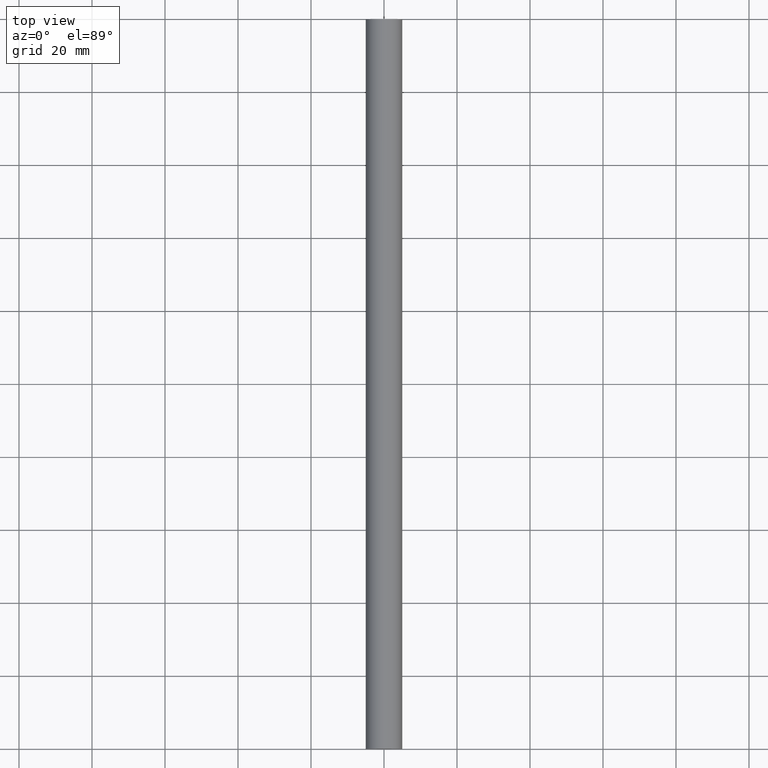
[diagram: clean part render]
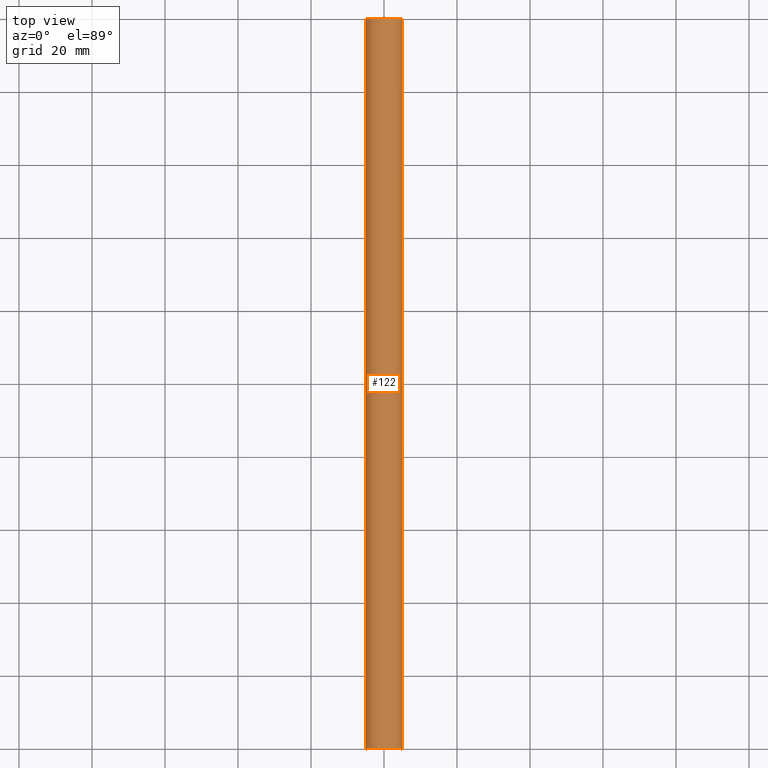
[diagram: same view with one face highlighted and labeled with its STEP entity id]
A machine part, top view. The second image highlights one B-rep face of the part: STEP entity #122.
In plain terms, the highlighted cylindrical surface (edge-blend (fillet) strip) has radius 5 mm, axis along (0, -1, 0).
Its self-contained STEP definition (entity closure, byte-faithful):
#16 = CARTESIAN_POINT ( 'NONE',  ( 0.0000000000000000000, 1000.000000000000000, -0.9999999999999859000 ) ) ;
#37 = CARTESIAN_POINT ( 'NONE',  ( 5.000000000000000000, 200.0000000000000000, -0.9999999999999859000 ) ) ;
#41 = CIRCLE ( 'NONE', #240, 5.000000000000000000 ) ;
#42 = AXIS2_PLACEMENT_3D ( 'NONE', #119, #96, #211 ) ;
#43 = CARTESIAN_POINT ( 'NONE',  ( 5.000000000000000000, 0.0000000000000000000, -0.9999999999999859000 ) ) ;
#45 = DIRECTION ( 'NONE',  ( 0.0000000000000000000, 0.0000000000000000000, -1.000000000000000000 ) ) ;
#47 = DIRECTION ( 'NONE',  ( 0.0000000000000000000, -1.000000000000000000, 0.0000000000000000000 ) ) ;
#50 = EDGE_LOOP ( 'NONE', ( #136, #192, #233, #174 ) ) ;
#54 = AXIS2_PLACEMENT_3D ( 'NONE', #16, #67, #45 ) ;
#67 = DIRECTION ( 'NONE',  ( 0.0000000000000000000, -1.000000000000000000, 0.0000000000000000000 ) ) ;
#70 = VERTEX_POINT ( 'NONE', #90 ) ;
#75 = VERTEX_POINT ( 'NONE', #37 ) ;
#81 = CARTESIAN_POINT ( 'NONE',  ( -5.000000000000000000, 200.0000000000000000, -0.9999999999999850100 ) ) ;
#85 = EDGE_CURVE ( 'NONE', #75, #209, #41, .T. ) ;
#87 = VECTOR ( 'NONE', #141, 1000.000000000000000 ) ;
#90 = CARTESIAN_POINT ( 'NONE',  ( -5.000000000000000000, 0.0000000000000000000, -0.9999999999999850100 ) ) ;
#94 = EDGE_CURVE ( 'NONE', #209, #70, #239, .T. ) ;
#96 = DIRECTION ( 'NONE',  ( -0.0000000000000000000, -1.000000000000000000, -0.0000000000000000000 ) ) ;
#100 = EDGE_CURVE ( 'NONE', #75, #129, #186, .T. ) ;
#119 = CARTESIAN_POINT ( 'NONE',  ( 0.0000000000000000000, 0.0000000000000000000, -0.9999999999999859000 ) ) ;
#122 = ADVANCED_FACE ( 'NONE', ( #178 ), #134, .T. ) ;
#129 = VERTEX_POINT ( 'NONE', #43 ) ;
#134 = CYLINDRICAL_SURFACE ( 'NONE', #54, 5.000000000000000000 ) ;
#136 = ORIENTED_EDGE ( 'NONE', *, *, #173, .F. ) ;
#141 = DIRECTION ( 'NONE',  ( 0.0000000000000000000, -1.000000000000000000, 0.0000000000000000000 ) ) ;
#166 = DIRECTION ( 'NONE',  ( 0.0000000000000000000, 0.0000000000000000000, 1.000000000000000000 ) ) ;
#173 = EDGE_CURVE ( 'NONE', #129, #70, #210, .T. ) ;
#174 = ORIENTED_EDGE ( 'NONE', *, *, #94, .T. ) ;
#175 = VECTOR ( 'NONE', #47, 1000.000000000000000 ) ;
#178 = FACE_OUTER_BOUND ( 'NONE', #50, .T. ) ;
#186 = LINE ( 'NONE', #220, #87 ) ;
#192 = ORIENTED_EDGE ( 'NONE', *, *, #100, .F. ) ;
#205 = CARTESIAN_POINT ( 'NONE',  ( 0.0000000000000000000, 200.0000000000000000, -0.9999999999999859000 ) ) ;
#206 = CARTESIAN_POINT ( 'NONE',  ( -5.000000000000000000, 1000.000000000000000, -0.9999999999999850100 ) ) ;
#209 = VERTEX_POINT ( 'NONE', #81 ) ;
#210 = CIRCLE ( 'NONE', #42, 5.000000000000000000 ) ;
#211 = DIRECTION ( 'NONE',  ( 0.0000000000000000000, 0.0000000000000000000, 1.000000000000000000 ) ) ;
#220 = CARTESIAN_POINT ( 'NONE',  ( 5.000000000000000000, 1000.000000000000000, -0.9999999999999859000 ) ) ;
#224 = DIRECTION ( 'NONE',  ( -0.0000000000000000000, -1.000000000000000000, -0.0000000000000000000 ) ) ;
#233 = ORIENTED_EDGE ( 'NONE', *, *, #85, .T. ) ;
#239 = LINE ( 'NONE', #206, #175 ) ;
#240 = AXIS2_PLACEMENT_3D ( 'NONE', #205, #224, #166 ) ;